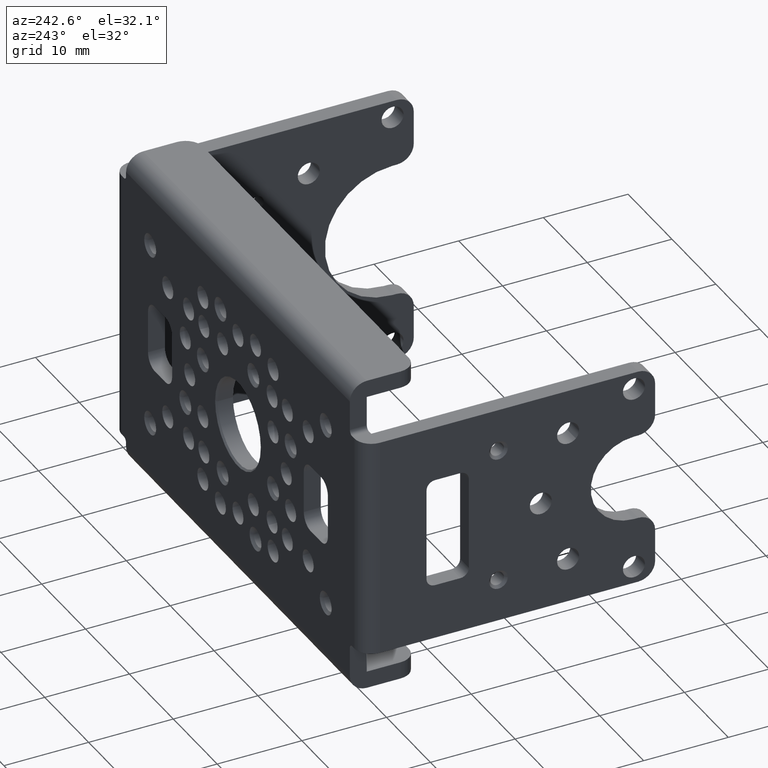
[diagram: clean part render]
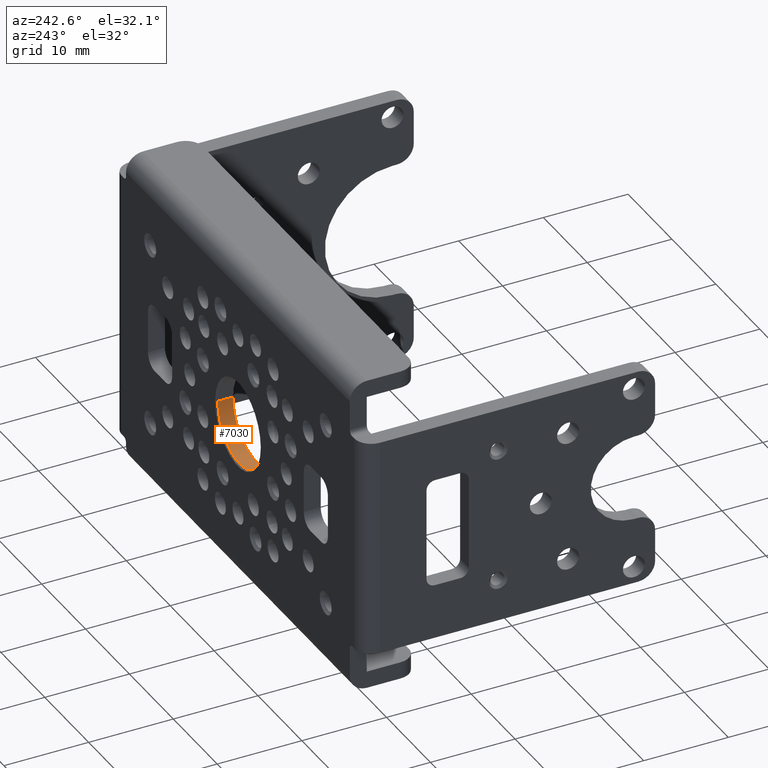
[diagram: same view with one face highlighted and labeled with its STEP entity id]
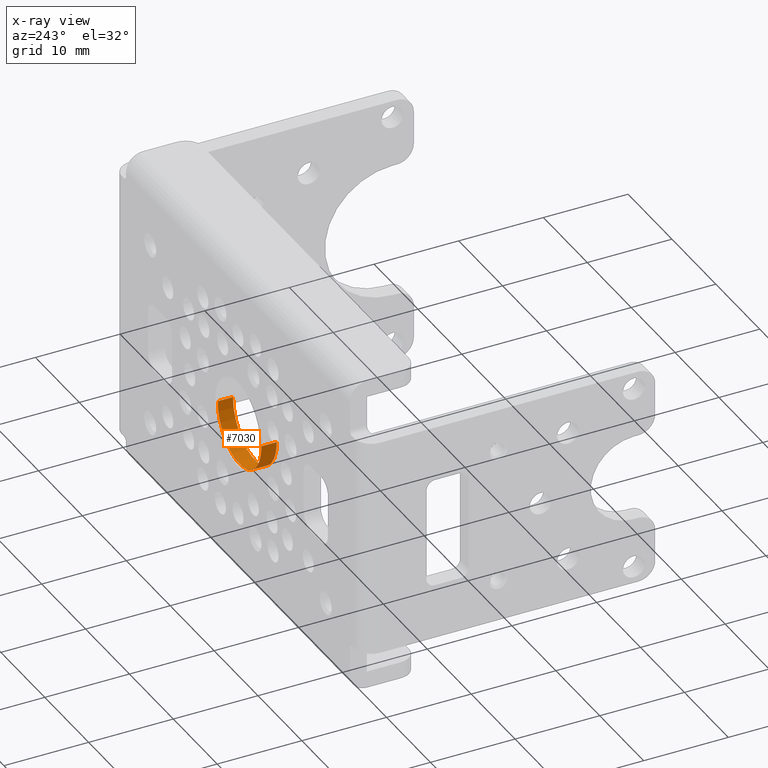
[diagram: x-ray of the same camera — body ghosted, the highlighted face saturated]
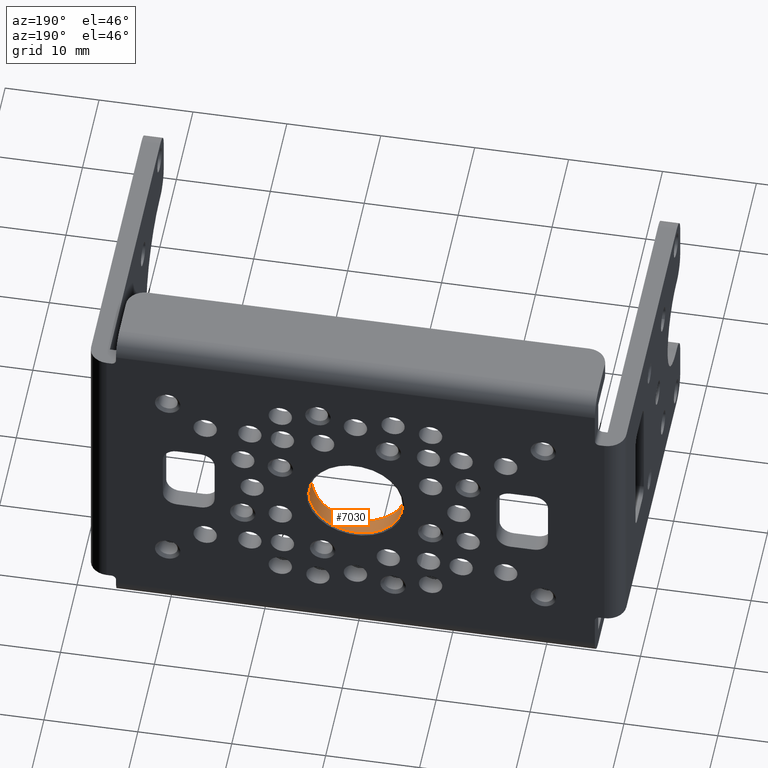
[diagram: same view with one face highlighted and labeled with its STEP entity id]
A machine part, auxiliary view. The second image highlights one B-rep face of the part: STEP entity #7030.
The next image is the same camera in x-ray: the body ghosted, the highlighted face saturated — about 0% of this face is hidden behind the body in this view.
A second angle (auxiliary view) of the same face is appended — the face is thin or edge-on in the first view.
In plain terms, the highlighted cylindrical surface (partial cylindrical patch) has radius 5 mm, axis along (0, 1, 0).
Its self-contained STEP definition (entity closure, byte-faithful):
#46=CARTESIAN_POINT('',(0.E0,0.E0,0.E0));
#47=DIRECTION('',(0.E0,1.E0,0.E0));
#48=DIRECTION('',(1.E0,0.E0,0.E0));
#49=AXIS2_PLACEMENT_3D('',#46,#47,#48);
#2530=DIRECTION('',(-1.478647823655E-9,1.E0,2.820161659420E-9));
#2531=VECTOR('',#2530,1.799999997338E0);
#2532=CARTESIAN_POINT('',(5.E0,0.E0,0.E0));
#2533=LINE('',#2532,#2531);
#2534=CARTESIAN_POINT('',(0.E0,1.8E0,0.E0));
#2535=DIRECTION('',(0.E0,-1.E0,0.E0));
#2536=DIRECTION('',(-1.E0,0.E0,0.E0));
#2537=AXIS2_PLACEMENT_3D('',#2534,#2535,#2536);
#2539=DIRECTION('',(1.478647823655E-9,1.E0,-2.820162276210E-9));
#2540=VECTOR('',#2539,1.799999997338E0);
#2541=CARTESIAN_POINT('',(-5.E0,0.E0,0.E0));
#2542=LINE('',#2541,#2540);
#3199=CARTESIAN_POINT('',(-5.E0,0.E0,0.E0));
#3200=CARTESIAN_POINT('',(5.E0,0.E0,0.E0));
#3201=VERTEX_POINT('',#3199);
#3202=VERTEX_POINT('',#3200);
#3643=CARTESIAN_POINT('',(-5.E0,1.8E0,0.E0));
#3644=CARTESIAN_POINT('',(5.E0,1.8E0,0.E0));
#3645=VERTEX_POINT('',#3643);
#3646=VERTEX_POINT('',#3644);
#7019=CARTESIAN_POINT('',(0.E0,1.E0,0.E0));
#7020=DIRECTION('',(0.E0,1.E0,0.E0));
#7021=DIRECTION('',(1.E0,0.E0,0.E0));
#7022=AXIS2_PLACEMENT_3D('',#7019,#7020,#7021);
#7023=CYLINDRICAL_SURFACE('',#7022,5.E0);
#7024=ORIENTED_EDGE('',*,*,#6985,.T.);
#7025=ORIENTED_EDGE('',*,*,#7014,.F.);
#7026=ORIENTED_EDGE('',*,*,#3816,.T.);
#7027=ORIENTED_EDGE('',*,*,#7011,.T.);
#7028=EDGE_LOOP('',(#7024,#7025,#7026,#7027));
#7029=FACE_OUTER_BOUND('',#7028,.F.);
#7030=ADVANCED_FACE('',(#7029),#7023,.F.);
#50=CIRCLE('',#49,5.E0);
#2538=CIRCLE('',#2537,5.E0);
#3816=EDGE_CURVE('',#3202,#3201,#50,.T.);
#6985=EDGE_CURVE('',#3645,#3646,#2538,.T.);
#7011=EDGE_CURVE('',#3201,#3645,#2542,.T.);
#7014=EDGE_CURVE('',#3202,#3646,#2533,.T.);